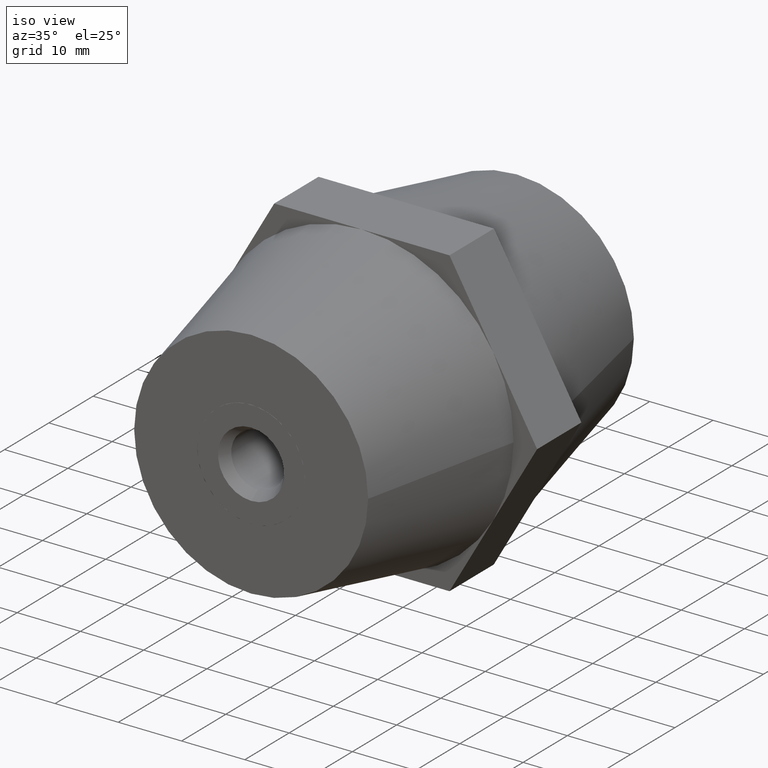
[diagram: clean part render]
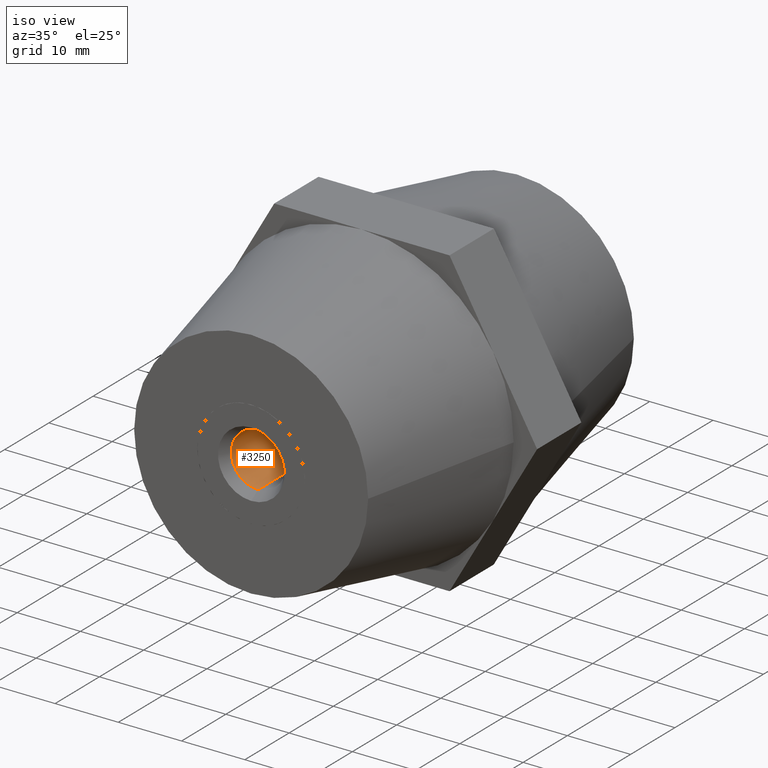
[diagram: same view with one face highlighted and labeled with its STEP entity id]
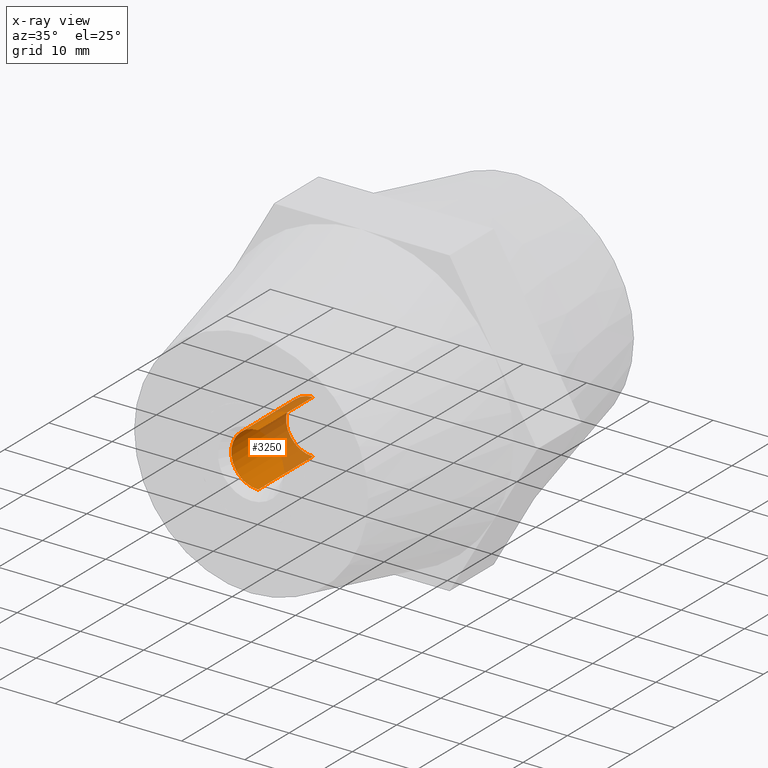
[diagram: x-ray of the same camera — body ghosted, the highlighted face saturated]
A machine part, iso view. The second image highlights one B-rep face of the part: STEP entity #3250.
The next image is the same camera in x-ray: the body ghosted, the highlighted face saturated — about 36% of this face is hidden behind the body in this view.
In plain terms, the highlighted cylindrical surface (edge-blend (fillet) strip) has radius 4.25 mm, axis along (-0, -1, 0).
Its self-contained STEP definition (entity closure, byte-faithful):
#84 = ORIENTED_EDGE ( 'NONE', *, *, #152, .T. ) ;
#113 = CARTESIAN_POINT ( 'NONE',  ( 0.0000000000000000000, 17.00000000000000000, 4.250000000000000000 ) ) ;
#133 = CARTESIAN_POINT ( 'NONE',  ( 5.204748896376250700E-016, 17.00000000000000000, -4.250000000000000000 ) ) ;
#152 = EDGE_CURVE ( 'NONE', #3008, #1681, #811, .T. ) ;
#190 = LINE ( 'NONE', #133, #1285 ) ;
#191 = CARTESIAN_POINT ( 'NONE',  ( 0.0000000000000000000, 15.43031442288250000, 4.250000000000000000 ) ) ;
#199 = EDGE_CURVE ( 'NONE', #2590, #1958, #190, .T. ) ;
#267 = ORIENTED_EDGE ( 'NONE', *, *, #617, .T. ) ;
#361 = CIRCLE ( 'NONE', #2335, 4.250000000000000000 ) ;
#390 = DIRECTION ( 'NONE',  ( 0.0000000000000000000, 1.000000000000000000, 0.0000000000000000000 ) ) ;
#617 = EDGE_CURVE ( 'NONE', #1681, #1958, #3291, .T. ) ;
#811 = LINE ( 'NONE', #113, #2815 ) ;
#859 = CARTESIAN_POINT ( 'NONE',  ( 0.0000000000000000000, 3.050000000000000300, 0.0000000000000000000 ) ) ;
#966 = AXIS2_PLACEMENT_3D ( 'NONE', #1258, #390, #3397 ) ;
#1158 = DIRECTION ( 'NONE',  ( 0.0000000000000000000, 0.0000000000000000000, 1.000000000000000000 ) ) ;
#1239 = ORIENTED_EDGE ( 'NONE', *, *, #199, .F. ) ;
#1258 = CARTESIAN_POINT ( 'NONE',  ( 0.0000000000000000000, 17.00000000000000000, 0.0000000000000000000 ) ) ;
#1285 = VECTOR ( 'NONE', #2256, 1000.000000000000000 ) ;
#1355 = EDGE_LOOP ( 'NONE', ( #1239, #1719, #84, #267 ) ) ;
#1537 = CARTESIAN_POINT ( 'NONE',  ( 0.0000000000000000000, 15.43031442288250000, 0.0000000000000000000 ) ) ;
#1681 = VERTEX_POINT ( 'NONE', #191 ) ;
#1719 = ORIENTED_EDGE ( 'NONE', *, *, #3868, .F. ) ;
#1843 = DIRECTION ( 'NONE',  ( 0.0000000000000000000, 0.0000000000000000000, 1.000000000000000000 ) ) ;
#1958 = VERTEX_POINT ( 'NONE', #3419 ) ;
#2256 = DIRECTION ( 'NONE',  ( 0.0000000000000000000, 1.000000000000000000, 0.0000000000000000000 ) ) ;
#2335 = AXIS2_PLACEMENT_3D ( 'NONE', #859, #2981, #1158 ) ;
#2360 = FACE_OUTER_BOUND ( 'NONE', #1355, .T. ) ;
#2590 = VERTEX_POINT ( 'NONE', #3400 ) ;
#2815 = VECTOR ( 'NONE', #3775, 1000.000000000000000 ) ;
#2976 = CARTESIAN_POINT ( 'NONE',  ( 0.0000000000000000000, 3.050000000000000300, 4.250000000000000000 ) ) ;
#2981 = DIRECTION ( 'NONE',  ( 0.0000000000000000000, 1.000000000000000000, 0.0000000000000000000 ) ) ;
#3008 = VERTEX_POINT ( 'NONE', #2976 ) ;
#3083 = CYLINDRICAL_SURFACE ( 'NONE', #966, 4.250000000000000000 ) ;
#3250 = ADVANCED_FACE ( 'NONE', ( #2360 ), #3083, .F. ) ;
#3291 = CIRCLE ( 'NONE', #3718, 4.250000000000000000 ) ;
#3397 = DIRECTION ( 'NONE',  ( 0.0000000000000000000, 0.0000000000000000000, 1.000000000000000000 ) ) ;
#3400 = CARTESIAN_POINT ( 'NONE',  ( 5.204748896376250700E-016, 3.050000000000000300, -4.250000000000000000 ) ) ;
#3419 = CARTESIAN_POINT ( 'NONE',  ( 5.204748896376250700E-016, 15.43031442288250000, -4.250000000000000000 ) ) ;
#3692 = DIRECTION ( 'NONE',  ( 0.0000000000000000000, 1.000000000000000000, 0.0000000000000000000 ) ) ;
#3718 = AXIS2_PLACEMENT_3D ( 'NONE', #1537, #3692, #1843 ) ;
#3775 = DIRECTION ( 'NONE',  ( 0.0000000000000000000, 1.000000000000000000, 0.0000000000000000000 ) ) ;
#3868 = EDGE_CURVE ( 'NONE', #3008, #2590, #361, .T. ) ;